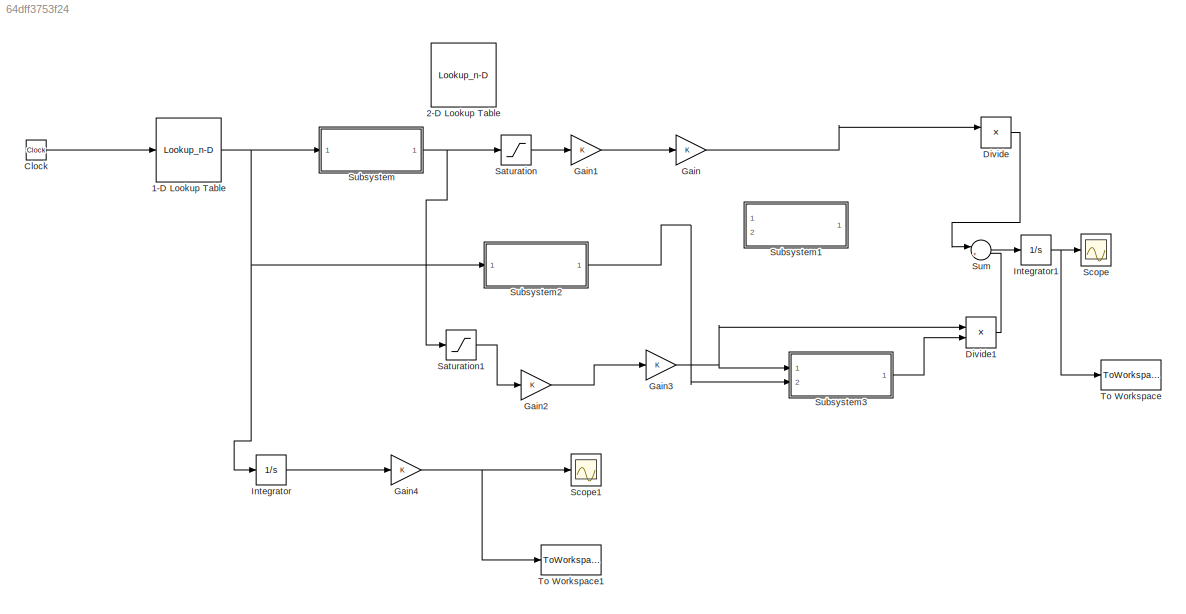
MODEL slx_64dff3753f24
KIND model
CONFIG AbsTol = auto
CONFIG EnableMultiTasking = on
CONFIG FixedStep = auto
CONFIG MaxStep = auto
CONFIG MinStep = auto
CONFIG RelTol = 1e-3
CONFIG SampleTimeConstraint = Unconstrained
CONFIG Solver = VariableStepAuto
CONFIG SolverName = VariableStepAuto
CONFIG StartTime = 0.0
CONFIG StopTime = 10.0
BLOCK [Lookup_n-D] 1-D Lookup Table
  BreakpointsForDimension1 = [-5:5]
  InternalRulePriority = Speed
  NumberOfTableDimensions = 1
  Ports = [1, 1]
  RndMeth = Simplest
  Table = tanh([-5:5])
BLOCK [Lookup_n-D] 2-D Lookup Table
  BreakpointsForDimension1 = [1:3]
  BreakpointsForDimension2 = [1:3]
  InternalRulePriority = Speed
  Ports = [2, 1]
  RndMeth = Simplest
BLOCK [Clock] Clock
BLOCK [Product] Divide
  InputSameDT = off
  Inputs = */
  OutDataTypeStr = Inherit: Inherit via internal rule
  Ports = [2, 1]
  RndMeth = Floor
  SaturateOnIntegerOverflow = off
BLOCK [Product] Divide1
  InputSameDT = off
  Inputs = */
  OutDataTypeStr = Inherit: Inherit via internal rule
  Ports = [2, 1]
  RndMeth = Floor
  SaturateOnIntegerOverflow = off
BLOCK [Gain] Gain
  OutDataTypeStr = Inherit: Inherit via internal rule
  ParamDataTypeStr = Inherit: Inherit via internal rule
  SaturateOnIntegerOverflow = off
BLOCK [Gain] Gain1
  OutDataTypeStr = Inherit: Inherit via internal rule
  ParamDataTypeStr = Inherit: Inherit via internal rule
  SaturateOnIntegerOverflow = off
BLOCK [Gain] Gain2
  OutDataTypeStr = Inherit: Inherit via internal rule
  ParamDataTypeStr = Inherit: Inherit via internal rule
  SaturateOnIntegerOverflow = off
BLOCK [Gain] Gain3
  OutDataTypeStr = Inherit: Inherit via internal rule
  ParamDataTypeStr = Inherit: Inherit via internal rule
  SaturateOnIntegerOverflow = off
BLOCK [Gain] Gain4
  OutDataTypeStr = Inherit: Inherit via internal rule
  ParamDataTypeStr = Inherit: Inherit via internal rule
  SaturateOnIntegerOverflow = off
BLOCK [Integrator] Integrator
  Ports = [1, 1]
BLOCK [Integrator] Integrator1
  Ports = [1, 1]
BLOCK [Saturate] Saturation
  InputPortMap = u0
  Ports = [1, 1]
BLOCK [Saturate] Saturation1
  InputPortMap = u0
  Ports = [1, 1]
BLOCK [Scope] Scope
  NumInputPorts = 1
  Ports = [1]
  ScopeSpecificationString = C++SS(StrPVP('SaveName','ScopeData'),StrPVP('LimitDataPoints','on'),StrPVP('DataFormat','Array'),StrPVP('Decimation','1'),StrPVP('BlockParamSampleInput','off'))
BLOCK [Scope] Scope1
  NumInputPorts = 1
  Ports = [1]
  ScopeSpecificationString = C++SS(StrPVP('SaveName','ScopeData'),StrPVP('SaveName','ScopeData1'),StrPVP('LimitDataPoints','on'),StrPVP('DataFormat','Array'),StrPVP('Decimation','1'),StrPVP('BlockParamSampleInput','off'))
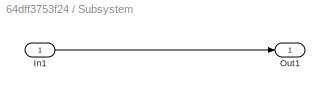
BLOCK [SubSystem] Subsystem
  Ports = [1, 1]
  RequestExecContextInheritance = off
  Variant = off
BLOCK [Inport] Subsystem/In1
  IconDisplay = Port number
BLOCK [Outport] Subsystem/Out1
  IconDisplay = Port number
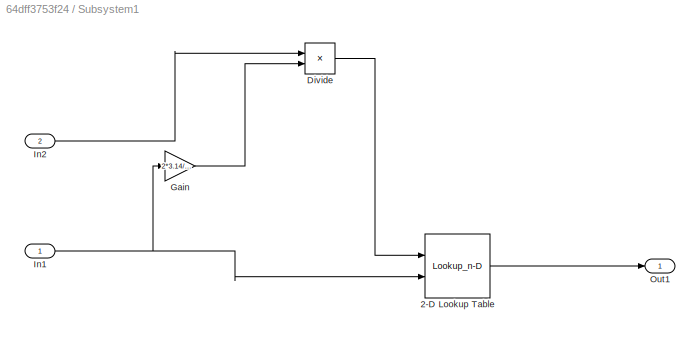
BLOCK [SubSystem] Subsystem1
  Ports = [2, 1]
  RequestExecContextInheritance = off
  Variant = off
BLOCK [Lookup_n-D] Subsystem1/2-D Lookup Table
  BreakpointsForDimension1 = mc.trq_eff_index
  BreakpointsForDimension2 = mc.rpm_eff_index
  InternalRulePriority = Speed
  Ports = [2, 1]
  RndMeth = Simplest
  Table = mc.eff_trq_map
BLOCK [Product] Subsystem1/Divide
  InputSameDT = off
  Inputs = */
  OutDataTypeStr = Inherit: Inherit via internal rule
  Ports = [2, 1]
  RndMeth = Floor
  SaturateOnIntegerOverflow = off
BLOCK [Gain] Subsystem1/Gain
  Gain = 2*3.14/60
  OutDataTypeStr = Inherit: Inherit via internal rule
  ParamDataTypeStr = Inherit: Inherit via internal rule
  SaturateOnIntegerOverflow = off
BLOCK [Inport] Subsystem1/In1
  IconDisplay = Port number
BLOCK [Inport] Subsystem1/In2
  IconDisplay = Port number
  Port = 2
BLOCK [Outport] Subsystem1/Out1
  IconDisplay = Port number
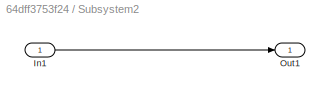
BLOCK [SubSystem] Subsystem2
  Ports = [1, 1]
  RequestExecContextInheritance = off
  Variant = off
BLOCK [Inport] Subsystem2/In1
  IconDisplay = Port number
BLOCK [Outport] Subsystem2/Out1
  IconDisplay = Port number
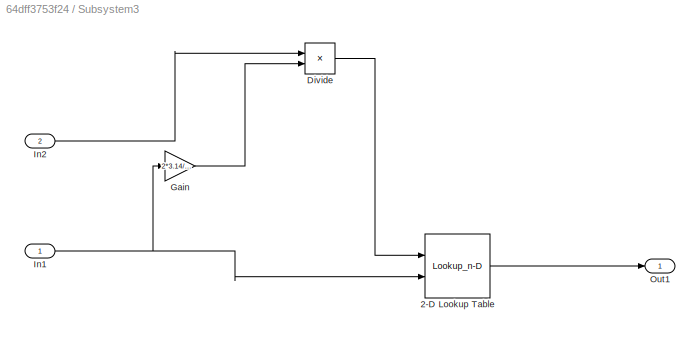
BLOCK [SubSystem] Subsystem3
  Ports = [2, 1]
  RequestExecContextInheritance = off
  Variant = off
BLOCK [Lookup_n-D] Subsystem3/2-D Lookup Table
  BreakpointsForDimension1 = mc.trq_eff_index
  BreakpointsForDimension2 = mc.rpm_eff_index
  InternalRulePriority = Speed
  Ports = [2, 1]
  RndMeth = Simplest
  Table = mc.eff_trq_map
BLOCK [Product] Subsystem3/Divide
  InputSameDT = off
  Inputs = */
  OutDataTypeStr = Inherit: Inherit via internal rule
  Ports = [2, 1]
  RndMeth = Floor
  SaturateOnIntegerOverflow = off
BLOCK [Gain] Subsystem3/Gain
  Gain = 2*3.14/60
  OutDataTypeStr = Inherit: Inherit via internal rule
  ParamDataTypeStr = Inherit: Inherit via internal rule
  SaturateOnIntegerOverflow = off
BLOCK [Inport] Subsystem3/In1
  IconDisplay = Port number
BLOCK [Inport] Subsystem3/In2
  IconDisplay = Port number
  Port = 2
BLOCK [Outport] Subsystem3/Out1
  IconDisplay = Port number
BLOCK [Sum] Sum
  IconShape = round
  InputSameDT = off
  Inputs = |++
  OutDataTypeStr = Inherit: Inherit via internal rule
  Ports = [2, 1]
  SaturateOnIntegerOverflow = off
BLOCK [ToWorkspace] To Workspace
  FixptAsFi = on
  MaxDataPoints = inf
  Ports = [1]
  SampleTime = -1
  Save2DSignal = 3-D array (concatenate along third dimension)
  SaveFormat = Timeseries
  VariableName = simout
BLOCK [ToWorkspace] To Workspace1
  FixptAsFi = on
  MaxDataPoints = inf
  Ports = [1]
  SampleTime = -1
  Save2DSignal = 3-D array (concatenate along third dimension)
  SaveFormat = Timeseries
  VariableName = simout1
NET 1-D Lookup Table:1 -> Integrator:1, Subsystem2:1, Subsystem:1
LINE Clock:1 -> 1-D Lookup Table:1
LINE Divide1:1 -> Sum:2
LINE Divide:1 -> Sum:1
LINE Gain1:1 -> Gain:1
LINE Gain2:1 -> Gain3:1
NET Gain3:1 -> Divide1:1, Subsystem3:1
NET Gain4:1 -> Scope1:1, To Workspace1:1
LINE Gain:1 -> Divide:1
NET Integrator1:1 -> Scope:1, To Workspace:1
LINE Integrator:1 -> Gain4:1
LINE Saturation1:1 -> Gain2:1
LINE Saturation:1 -> Gain1:1
LINE Subsystem/In1:1 -> Subsystem/Out1:1
LINE Subsystem1/2-D Lookup Table:1 -> Subsystem1/Out1:1
LINE Subsystem1/Divide:1 -> Subsystem1/2-D Lookup Table:1
LINE Subsystem1/Gain:1 -> Subsystem1/Divide:2
NET Subsystem1/In1:1 -> Subsystem1/2-D Lookup Table:2, Subsystem1/Gain:1
LINE Subsystem1/In2:1 -> Subsystem1/Divide:1
LINE Subsystem2/In1:1 -> Subsystem2/Out1:1
LINE Subsystem2:1 -> Subsystem3:2
LINE Subsystem3/2-D Lookup Table:1 -> Subsystem3/Out1:1
LINE Subsystem3/Divide:1 -> Subsystem3/2-D Lookup Table:1
LINE Subsystem3/Gain:1 -> Subsystem3/Divide:2
NET Subsystem3/In1:1 -> Subsystem3/2-D Lookup Table:2, Subsystem3/Gain:1
LINE Subsystem3/In2:1 -> Subsystem3/Divide:1
LINE Subsystem3:1 -> Divide1:2
NET Subsystem:1 -> Saturation1:1, Saturation:1
LINE Sum:1 -> Integrator1:1
note: NET lines group one-source signal fan-out (src -> all destinations, sorted); 1:1 wires keep LINE
